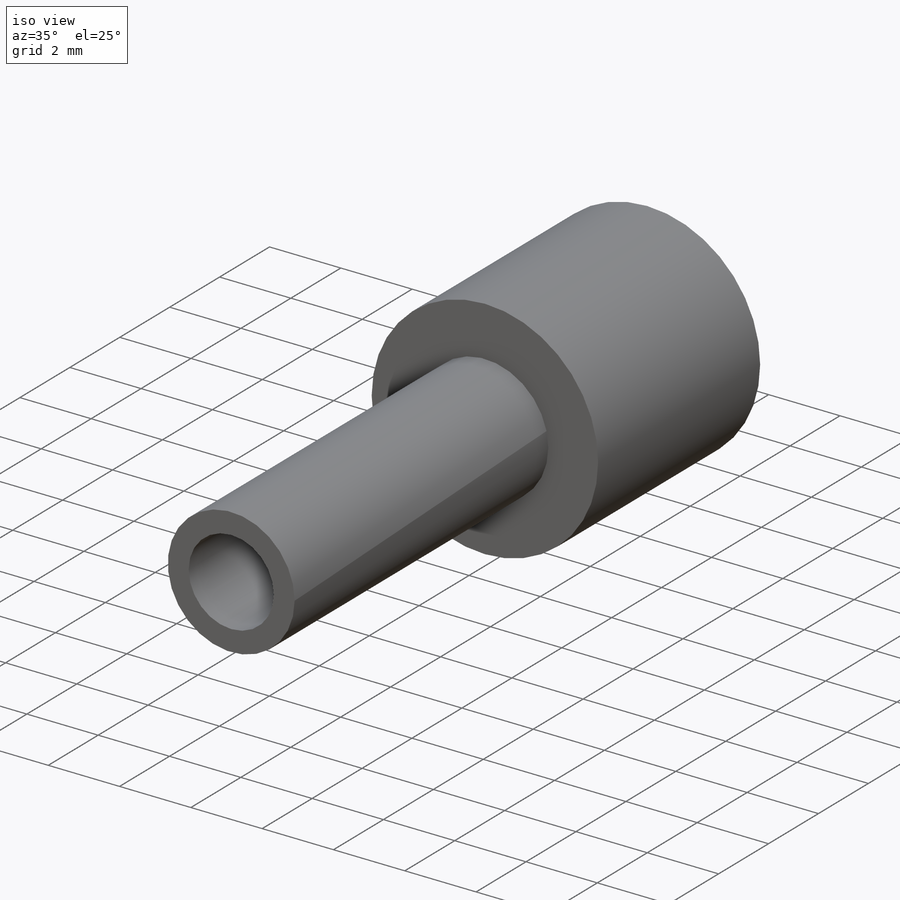
[diagram: iso view]
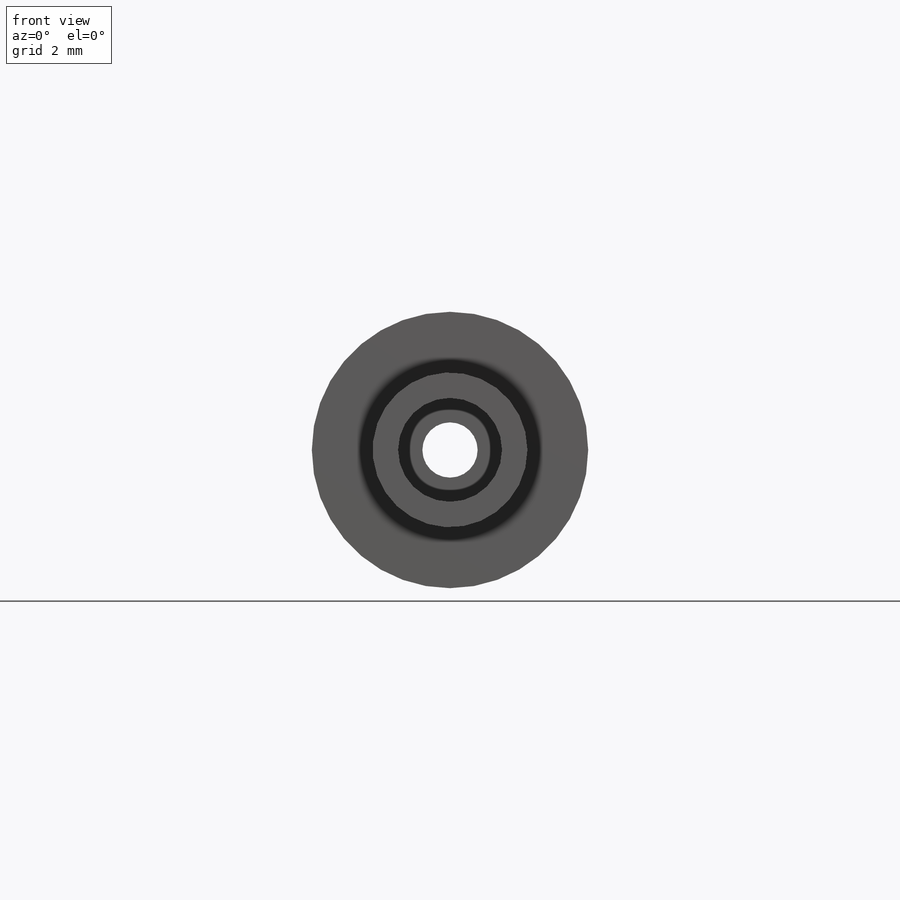
[diagram: front view]
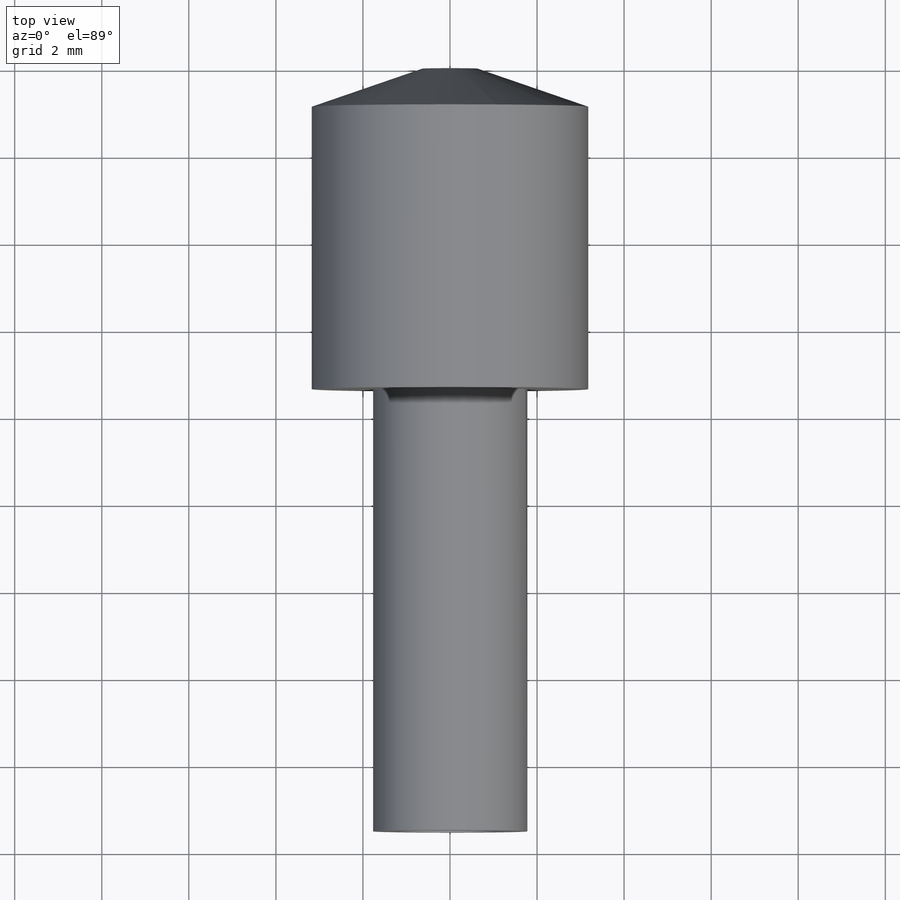
[diagram: top view]
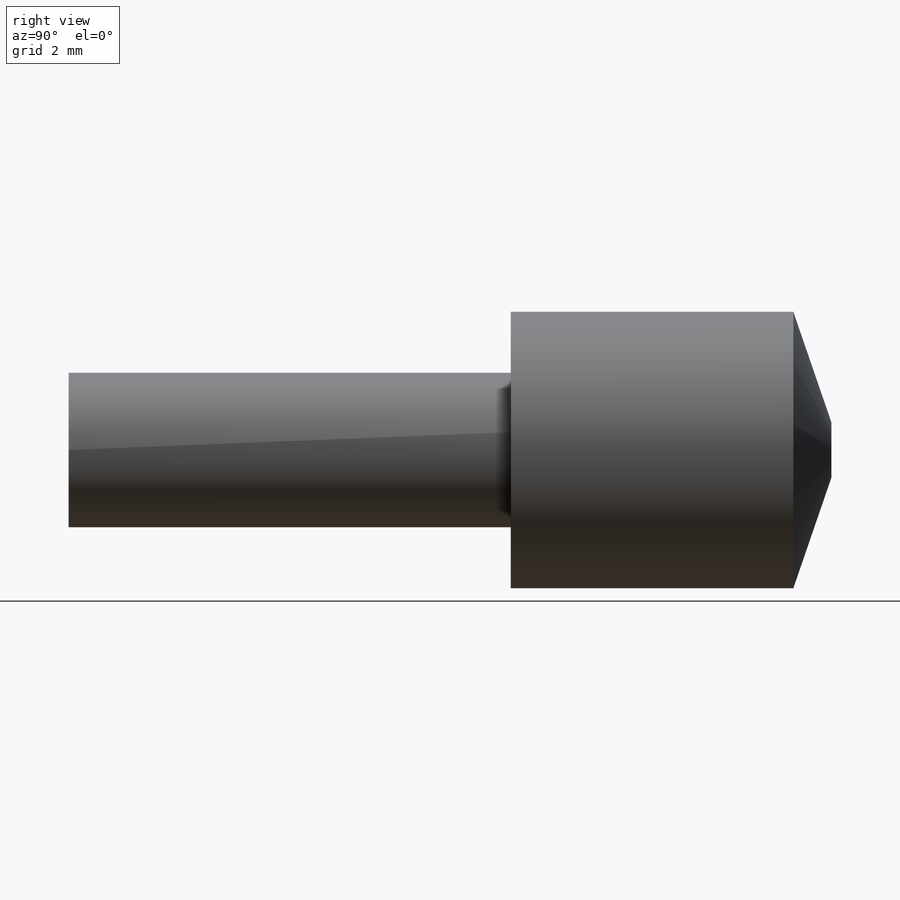
[diagram: right view]
SOLIDWORKS PART (.sldprt)
format: sldprt  version: not decoded by parser v0  size: 172,032 bytes
history: native  units: mm
features: sketch x4, cut_extrude x3, material x1, extrude x1, chamfer x1 (+13 scaffold rows collapsed)
feature tree (23):
  scaffold x13  (default folders/planes/origin — collapsed)
  material  "Material <not specified>"
  sketch  "Sketch1"  dims[D1=6.35mm]
  extrude  "Boss-Extrude1"  Depth=17.526mm
  sketch  "Sketch2"  dims[D1=3.556mm]
  cut_extrude  "Cut-Extrude1"  Depth=10.16mm
  sketch  "Sketch3"  dims[D1=2.3876mm]
  cut_extrude  "Cut-Extrude2"  Depth=10.16mm
  sketch  "Sketch5"  dims[D1=1.27mm]
  cut_extrude  "Cut-Extrude3"  Depth=7.62mm
  chamfer  "Chamfer1"  Distance=2.54mm Angle=19deg
decode coverage: 9 of 9 modeling features carry decoded parameters
note: suppression state not decoded; provenance and decode notes live in map.json
